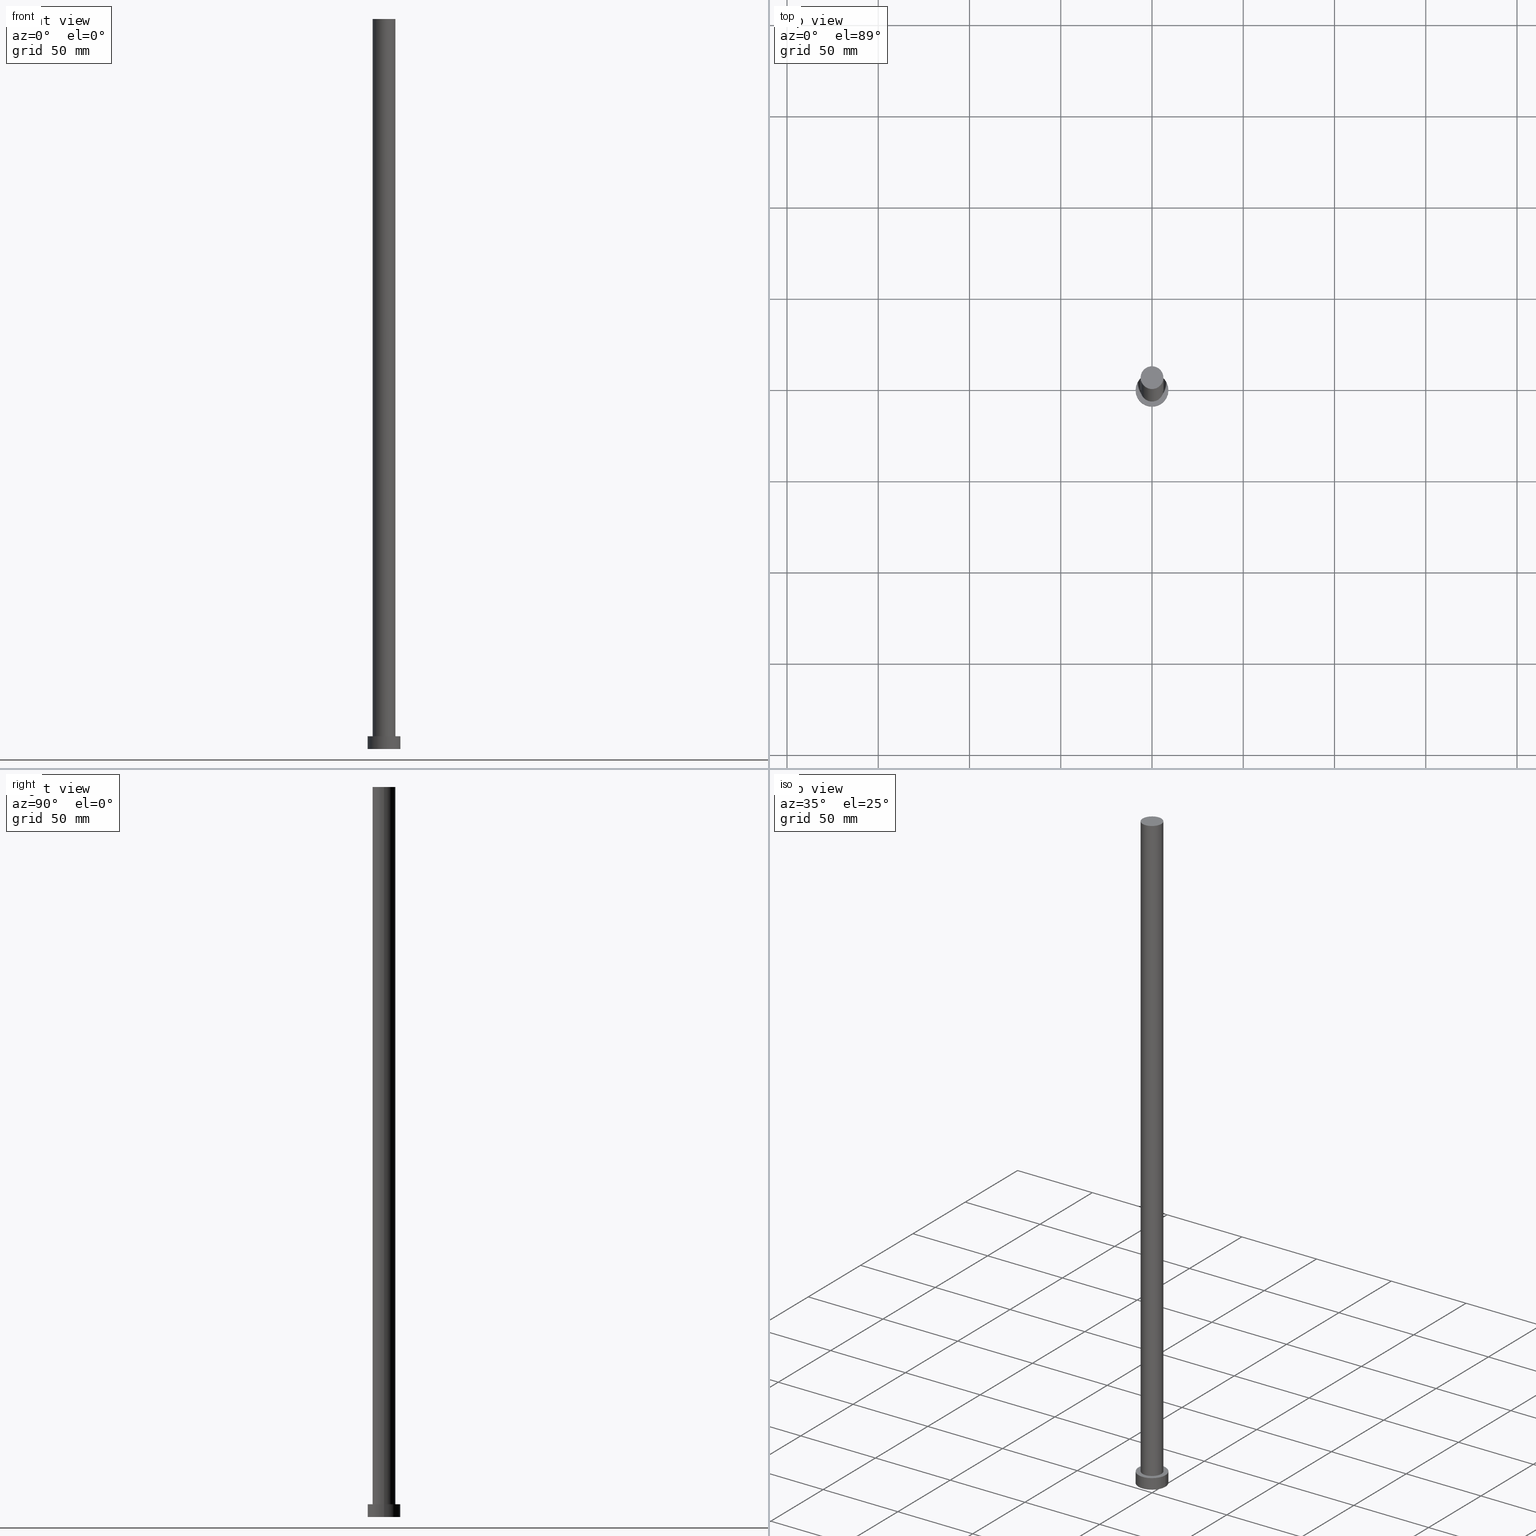
[diagram: canonical four-view strip — front | top / right | iso, engineering-drawing reading convention]
A machine part, canonical four-view strip (front | top / right | iso — engineering-drawing reading convention). The complete STEP part file that produces these views, byte-faithful:
ISO-10303-21;
HEADER;
FILE_DESCRIPTION (( 'STEP AP203' ),
    '1' );
FILE_NAME ('d6b2.STEP',
    '2023-02-12T10:54:33',
    ( '' ),
    ( '' ),
    'SwSTEP 2.0',
    'SolidWorks 2019',
    '' );
FILE_SCHEMA (( 'CONFIG_CONTROL_DESIGN' ));
ENDSEC;

DATA;
#1 = ORIENTED_EDGE ( 'NONE', *, *, #17, .T. ) ;
#2 = DIRECTION ( 'NONE',  ( 0.000000000000000000, 0.000000000000000000, 1.000000000000000000 ) ) ;
#3 = LOCAL_TIME ( 11, 54, 33.00000000000000000, #117 ) ;
#4 = ORIENTED_EDGE ( 'NONE', *, *, #50, .F. ) ;
#5 = CALENDAR_DATE ( 2023, 12, 2 ) ;
#6 = CYLINDRICAL_SURFACE ( 'NONE', #194, 6.250000000000000000 ) ;
#7 = APPROVAL_ROLE ( '' ) ;
#8 = FACE_OUTER_BOUND ( 'NONE', #220, .T. ) ;
#9 = CARTESIAN_POINT ( 'NONE',  ( 0.000000000000000000, 0.000000000000000000, 400.0000000000000000 ) ) ;
#10 = AXIS2_PLACEMENT_3D ( 'NONE', #173, #2, #116 ) ;
#11 = CARTESIAN_POINT ( 'NONE',  ( -9.000000000000000000, 0.000000000000000000, 7.000000000000000000 ) ) ;
#12 = CALENDAR_DATE ( 2023, 12, 2 ) ;
#13 = DIRECTION ( 'NONE',  ( 1.000000000000000000, 0.000000000000000000, 0.000000000000000000 ) ) ;
#14 = APPROVAL_STATUS ( 'not_yet_approved' ) ;
#15 = DATE_AND_TIME ( #204, #201 ) ;
#16 = CARTESIAN_POINT ( 'NONE',  ( 9.000000000000000000, 1.102182119232617714E-15, 7.000000000000000000 ) ) ;
#17 = EDGE_CURVE ( 'NONE', #172, #53, #49, .T. ) ;
#18 = VERTEX_POINT ( 'NONE', #221 ) ;
#19 = FACE_OUTER_BOUND ( 'NONE', #183, .T. ) ;
#20 = AXIS2_PLACEMENT_3D ( 'NONE', #46, #238, #108 ) ;
#21 = CC_DESIGN_DATE_AND_TIME_ASSIGNMENT ( #222, #241, ( #41 ) ) ;
#22 = AXIS2_PLACEMENT_3D ( 'NONE', #228, #56, #40 ) ;
#23 = CC_DESIGN_APPROVAL ( #255, ( #195 ) ) ;
#24 = ORIENTED_EDGE ( 'NONE', *, *, #36, .F. ) ;
#25 = CC_DESIGN_PERSON_AND_ORGANIZATION_ASSIGNMENT ( #129, #30, ( #100 ) ) ;
#26 = ORIENTED_EDGE ( 'NONE', *, *, #213, .F. ) ;
#27 = AXIS2_PLACEMENT_3D ( 'NONE', #251, #186, #120 ) ;
#28 = PERSON ( 'NEUR�EN�', 'NEUR�EN�', 'NEUR�EN�', ('NEUR�EN�'), ('NEUR�EN�'), ('NEUR�EN�') ) ;
#29 = ORIENTED_EDGE ( 'NONE', *, *, #50, .T. ) ;
#30 = PERSON_AND_ORGANIZATION_ROLE ( 'design_owner' ) ;
#31 = DIRECTION ( 'NONE',  ( -0.000000000000000000, -0.000000000000000000, -1.000000000000000000 ) ) ;
#32 = CARTESIAN_POINT ( 'NONE',  ( -6.250000000000000000, 0.000000000000000000, 400.0000000000000000 ) ) ;
#33 = CARTESIAN_POINT ( 'NONE',  ( 0.000000000000000000, 0.000000000000000000, 7.000000000000000000 ) ) ;
#34 = EDGE_CURVE ( 'NONE', #18, #235, #141, .T. ) ;
#35 = DIRECTION ( 'NONE',  ( 1.000000000000000000, 0.000000000000000000, 0.000000000000000000 ) ) ;
#36 = EDGE_CURVE ( 'NONE', #235, #18, #248, .T. ) ;
#37 = CARTESIAN_POINT ( 'NONE',  ( -9.000000000000000000, 0.000000000000000000, 0.000000000000000000 ) ) ;
#38 = ORIENTED_EDGE ( 'NONE', *, *, #217, .T. ) ;
#39 = AXIS2_PLACEMENT_3D ( 'NONE', #84, #112, #175 ) ;
#40 = DIRECTION ( 'NONE',  ( -1.000000000000000000, 0.000000000000000000, 0.000000000000000000 ) ) ;
#41 = SECURITY_CLASSIFICATION ( '', '', #98 ) ;
#42 = DIRECTION ( 'NONE',  ( 1.000000000000000000, 0.000000000000000000, 0.000000000000000000 ) ) ;
#43 = MANIFOLD_SOLID_BREP ( 'P�idat vysunut�m3', #190 ) ;
#44 = ADVANCED_FACE ( 'NONE', ( #230 ), #133, .T. ) ;
#45 = APPLICATION_CONTEXT ( 'configuration controlled 3d designs of mechanical parts and assemblies' ) ;
#46 = CARTESIAN_POINT ( 'NONE',  ( 0.000000000000000000, 0.000000000000000000, 400.0000000000000000 ) ) ;
#47 = ADVANCED_FACE ( 'NONE', ( #179, #223 ), #242, .T. ) ;
#48 = FACE_OUTER_BOUND ( 'NONE', #216, .T. ) ;
#49 = CIRCLE ( 'NONE', #158, 6.250000000000000000 ) ;
#50 = EDGE_CURVE ( 'NONE', #88, #235, #166, .T. ) ;
#51 = CARTESIAN_POINT ( 'NONE',  ( 6.250000000000000000, 7.654042494670957606E-16, 400.0000000000000000 ) ) ;
#52 = SHAPE_DEFINITION_REPRESENTATION ( #184, #218 ) ;
#53 = VERTEX_POINT ( 'NONE', #247 ) ;
#54 = LINE ( 'NONE', #16, #125 ) ;
#55 = PERSON_AND_ORGANIZATION ( #28, #62 ) ;
#56 = DIRECTION ( 'NONE',  ( -0.000000000000000000, -0.000000000000000000, -1.000000000000000000 ) ) ;
#57 = PERSON_AND_ORGANIZATION_ROLE ( 'creator' ) ;
#58 = ORIENTED_EDGE ( 'NONE', *, *, #206, .F. ) ;
#59 = EDGE_CURVE ( 'NONE', #207, #53, #130, .T. ) ;
#60 = CC_DESIGN_PERSON_AND_ORGANIZATION_ASSIGNMENT ( #203, #188, ( #191 ) ) ;
#61 = AXIS2_PLACEMENT_3D ( 'NONE', #153, #234, #227 ) ;
#62 = ORGANIZATION ( 'NEUR�EN�', 'NEUR�EN�', '' ) ;
#63 = EDGE_CURVE ( 'NONE', #215, #18, #54, .T. ) ;
#64 = APPROVAL_STATUS ( 'not_yet_approved' ) ;
#65 = APPLICATION_PROTOCOL_DEFINITION ( 'international standard', 'config_control_design', 1994, #45 ) ;
#66 = APPROVAL_PERSON_ORGANIZATION ( #163, #255, #229 ) ;
#67 = CC_DESIGN_APPROVAL ( #73, ( #41 ) ) ;
#68 = CALENDAR_DATE ( 2023, 12, 2 ) ;
#69 = APPLICATION_PROTOCOL_DEFINITION ( 'international standard', 'config_control_design', 1994, #231 ) ;
#70 = EDGE_LOOP ( 'NONE', ( #123, #111, #29, #212 ) ) ;
#71 = PERSON_AND_ORGANIZATION ( #28, #62 ) ;
#72 = CARTESIAN_POINT ( 'NONE',  ( 0.000000000000000000, 0.000000000000000000, 0.000000000000000000 ) ) ;
#73 = APPROVAL ( #64, 'NEUR�EN�' ) ;
#74 = VERTEX_POINT ( 'NONE', #51 ) ;
#75 = CARTESIAN_POINT ( 'NONE',  ( 0.000000000000000000, 0.000000000000000000, 0.000000000000000000 ) ) ;
#76 = DIRECTION ( 'NONE',  ( -1.000000000000000000, 0.000000000000000000, 0.000000000000000000 ) ) ;
#77 = APPROVAL_PERSON_ORGANIZATION ( #91, #73, #162 ) ;
#78 = PERSON_AND_ORGANIZATION_ROLE ( 'classification_officer' ) ;
#79 =( LENGTH_UNIT ( ) NAMED_UNIT ( * ) SI_UNIT ( .MILLI., .METRE. ) );
#80 = CARTESIAN_POINT ( 'NONE',  ( 6.250000000000000000, 7.654042494670957606E-16, 400.0000000000000000 ) ) ;
#81 = ORIENTED_EDGE ( 'NONE', *, *, #34, .T. ) ;
#82 = EDGE_CURVE ( 'NONE', #74, #172, #202, .T. ) ;
#83 = VECTOR ( 'NONE', #31, 1000.000000000000000 ) ;
#84 = CARTESIAN_POINT ( 'NONE',  ( 0.000000000000000000, 0.000000000000000000, 7.000000000000000000 ) ) ;
#85 = DESIGN_CONTEXT ( 'detailed design', #45, 'design' ) ;
#86 = EDGE_LOOP ( 'NONE', ( #101, #26, #233, #240 ) ) ;
#87 = ORIENTED_EDGE ( 'NONE', *, *, #206, .T. ) ;
#88 = VERTEX_POINT ( 'NONE', #181 ) ;
#89 = CYLINDRICAL_SURFACE ( 'NONE', #20, 6.250000000000000000 ) ;
#90 = DIRECTION ( 'NONE',  ( 1.000000000000000000, 0.000000000000000000, 0.000000000000000000 ) ) ;
#91 = PERSON_AND_ORGANIZATION ( #28, #62 ) ;
#92 = PLANE ( 'NONE',  #170 ) ;
#93 = MECHANICAL_CONTEXT ( 'NONE', #231, 'mechanical' ) ;
#94 = ADVANCED_FACE ( 'NONE', ( #8 ), #92, .T. ) ;
#95 = DATE_AND_TIME ( #12, #3 ) ;
#96 = CYLINDRICAL_SURFACE ( 'NONE', #22, 9.000000000000000000 ) ;
#97 = DIRECTION ( 'NONE',  ( -0.000000000000000000, -0.000000000000000000, -1.000000000000000000 ) ) ;
#98 = SECURITY_CLASSIFICATION_LEVEL ( 'unclassified' ) ;
#99 = DIRECTION ( 'NONE',  ( -0.000000000000000000, -0.000000000000000000, -1.000000000000000000 ) ) ;
#100 = PRODUCT ( 'd6b2', 'd6b2', '', ( #93 ) ) ;
#101 = ORIENTED_EDGE ( 'NONE', *, *, #82, .F. ) ;
#102 = CIRCLE ( 'NONE', #39, 6.250000000000000000 ) ;
#103 = ORIENTED_EDGE ( 'NONE', *, *, #146, .F. ) ;
#104 = PRODUCT_RELATED_PRODUCT_CATEGORY ( 'detail', '', ( #100 ) ) ;
#105 = ORIENTED_EDGE ( 'NONE', *, *, #63, .T. ) ;
#106 = DATE_TIME_ROLE ( 'creation_date' ) ;
#107 = ORIENTED_EDGE ( 'NONE', *, *, #59, .F. ) ;
#108 = DIRECTION ( 'NONE',  ( -1.000000000000000000, 0.000000000000000000, 0.000000000000000000 ) ) ;
#109 = ADVANCED_FACE ( 'NONE', ( #139 ), #237, .F. ) ;
#110 = AXIS2_PLACEMENT_3D ( 'NONE', #138, #214, #35 ) ;
#111 = ORIENTED_EDGE ( 'NONE', *, *, #174, .F. ) ;
#112 = DIRECTION ( 'NONE',  ( 0.000000000000000000, 0.000000000000000000, 1.000000000000000000 ) ) ;
#113 = EDGE_LOOP ( 'NONE', ( #103, #210 ) ) ;
#114 = COORDINATED_UNIVERSAL_TIME_OFFSET ( 1, 0, .AHEAD. ) ;
#115 = DIRECTION ( 'NONE',  ( -1.000000000000000000, 0.000000000000000000, 0.000000000000000000 ) ) ;
#116 = DIRECTION ( 'NONE',  ( 1.000000000000000000, 0.000000000000000000, 0.000000000000000000 ) ) ;
#117 = COORDINATED_UNIVERSAL_TIME_OFFSET ( 1, 0, .AHEAD. ) ;
#118 = CALENDAR_DATE ( 2023, 12, 2 ) ;
#119 = DIRECTION ( 'NONE',  ( 0.000000000000000000, 0.000000000000000000, 1.000000000000000000 ) ) ;
#120 = DIRECTION ( 'NONE',  ( 1.000000000000000000, 0.000000000000000000, -0.000000000000000000 ) ) ;
#121 = DIRECTION ( 'NONE',  ( 0.000000000000000000, 0.000000000000000000, 1.000000000000000000 ) ) ;
#122 = CARTESIAN_POINT ( 'NONE',  ( 0.000000000000000000, 0.000000000000000000, 400.0000000000000000 ) ) ;
#123 = ORIENTED_EDGE ( 'NONE', *, *, #63, .F. ) ;
#124 = AXIS2_PLACEMENT_3D ( 'NONE', #122, #121, #42 ) ;
#125 = VECTOR ( 'NONE', #99, 1000.000000000000000 ) ;
#126 = APPROVAL ( #14, 'NEUR�EN�' ) ;
#127 = DIRECTION ( 'NONE',  ( 1.000000000000000000, 0.000000000000000000, 0.000000000000000000 ) ) ;
#128 = ADVANCED_FACE ( 'NONE', ( #19 ), #96, .T. ) ;
#129 = PERSON_AND_ORGANIZATION ( #28, #62 ) ;
#130 = LINE ( 'NONE', #32, #131 ) ;
#131 = VECTOR ( 'NONE', #205, 1000.000000000000000 ) ;
#132 = CIRCLE ( 'NONE', #110, 6.250000000000000000 ) ;
#133 = CYLINDRICAL_SURFACE ( 'NONE', #150, 9.000000000000000000 ) ;
#134 = COORDINATED_UNIVERSAL_TIME_OFFSET ( 1, 0, .AHEAD. ) ;
#135 = DIRECTION ( 'NONE',  ( -0.000000000000000000, -0.000000000000000000, -1.000000000000000000 ) ) ;
#136 =( NAMED_UNIT ( * ) PLANE_ANGLE_UNIT ( ) SI_UNIT ( $, .RADIAN. ) );
#137 = EDGE_LOOP ( 'NONE', ( #24, #246 ) ) ;
#138 = CARTESIAN_POINT ( 'NONE',  ( 0.000000000000000000, 0.000000000000000000, 400.0000000000000000 ) ) ;
#139 = FACE_OUTER_BOUND ( 'NONE', #137, .T. ) ;
#140 = LOCAL_TIME ( 11, 54, 33.00000000000000000, #244 ) ;
#141 = CIRCLE ( 'NONE', #182, 9.000000000000000000 ) ;
#142 = CC_DESIGN_PERSON_AND_ORGANIZATION_ASSIGNMENT ( #55, #200, ( #191 ) ) ;
#143 = DIRECTION ( 'NONE',  ( 1.000000000000000000, 0.000000000000000000, 0.000000000000000000 ) ) ;
#144 = DIRECTION ( 'NONE',  ( 0.000000000000000000, 0.000000000000000000, 1.000000000000000000 ) ) ;
#145 = AXIS2_PLACEMENT_3D ( 'NONE', #75, #144, #127 ) ;
#146 = EDGE_CURVE ( 'NONE', #53, #172, #102, .T. ) ;
#147 = DATE_AND_TIME ( #68, #140 ) ;
#148 = COORDINATED_UNIVERSAL_TIME_OFFSET ( 1, 0, .AHEAD. ) ;
#149 = ORIENTED_EDGE ( 'NONE', *, *, #174, .T. ) ;
#150 = AXIS2_PLACEMENT_3D ( 'NONE', #187, #97, #115 ) ;
#151 = APPROVAL_STATUS ( 'not_yet_approved' ) ;
#152 = CC_DESIGN_APPROVAL ( #126, ( #191 ) ) ;
#153 = CARTESIAN_POINT ( 'NONE',  ( 0.000000000000000000, 0.000000000000000000, 0.000000000000000000 ) ) ;
#154 = DIRECTION ( 'NONE',  ( 1.000000000000000000, 0.000000000000000000, -0.000000000000000000 ) ) ;
#155 = CC_DESIGN_PERSON_AND_ORGANIZATION_ASSIGNMENT ( #71, #57, ( #195 ) ) ;
#156 = CIRCLE ( 'NONE', #124, 6.250000000000000000 ) ;
#157 = CC_DESIGN_SECURITY_CLASSIFICATION ( #41, ( #191 ) ) ;
#158 = AXIS2_PLACEMENT_3D ( 'NONE', #219, #160, #143 ) ;
#159 = ADVANCED_FACE ( 'NONE', ( #48 ), #89, .T. ) ;
#160 = DIRECTION ( 'NONE',  ( 0.000000000000000000, 0.000000000000000000, 1.000000000000000000 ) ) ;
#161 = VECTOR ( 'NONE', #135, 1000.000000000000000 ) ;
#162 = APPROVAL_ROLE ( '' ) ;
#163 = PERSON_AND_ORGANIZATION ( #28, #62 ) ;
#164 = CARTESIAN_POINT ( 'NONE',  ( 0.000000000000000000, 0.000000000000000000, 400.0000000000000000 ) ) ;
#165 = DIRECTION ( 'NONE',  ( -0.000000000000000000, -0.000000000000000000, -1.000000000000000000 ) ) ;
#166 = LINE ( 'NONE', #11, #161 ) ;
#167 = APPROVAL_DATE_TIME ( #95, #126 ) ;
#168 = DIRECTION ( 'NONE',  ( 0.000000000000000000, 0.000000000000000000, 1.000000000000000000 ) ) ;
#169 = AXIS2_PLACEMENT_3D ( 'NONE', #72, #226, #13 ) ;
#170 = AXIS2_PLACEMENT_3D ( 'NONE', #164, #119, #154 ) ;
#171 = PERSON_AND_ORGANIZATION ( #28, #62 ) ;
#172 = VERTEX_POINT ( 'NONE', #196 ) ;
#173 = CARTESIAN_POINT ( 'NONE',  ( 0.000000000000000000, 0.000000000000000000, 7.000000000000000000 ) ) ;
#174 = EDGE_CURVE ( 'NONE', #88, #215, #254, .T. ) ;
#175 = DIRECTION ( 'NONE',  ( 1.000000000000000000, 0.000000000000000000, 0.000000000000000000 ) ) ;
#176 = LOCAL_TIME ( 11, 54, 33.00000000000000000, #114 ) ;
#177 = ADVANCED_FACE ( 'NONE', ( #180 ), #6, .T. ) ;
#178 = DIRECTION ( 'NONE',  ( 0.000000000000000000, 0.000000000000000000, 1.000000000000000000 ) ) ;
#179 = FACE_BOUND ( 'NONE', #113, .T. ) ;
#180 = FACE_OUTER_BOUND ( 'NONE', #86, .T. ) ;
#181 = CARTESIAN_POINT ( 'NONE',  ( -9.000000000000000000, 0.000000000000000000, 7.000000000000000000 ) ) ;
#182 = AXIS2_PLACEMENT_3D ( 'NONE', #198, #178, #90 ) ;
#183 = EDGE_LOOP ( 'NONE', ( #58, #105, #81, #4 ) ) ;
#184 = PRODUCT_DEFINITION_SHAPE ( 'NONE', 'NONE',  #195 ) ;
#185 = DATE_AND_TIME ( #118, #208 ) ;
#186 = DIRECTION ( 'NONE',  ( 0.000000000000000000, 0.000000000000000000, 1.000000000000000000 ) ) ;
#187 = CARTESIAN_POINT ( 'NONE',  ( 0.000000000000000000, 0.000000000000000000, 7.000000000000000000 ) ) ;
#188 = PERSON_AND_ORGANIZATION_ROLE ( 'design_supplier' ) ;
#189 =( GEOMETRIC_REPRESENTATION_CONTEXT ( 3 ) GLOBAL_UNCERTAINTY_ASSIGNED_CONTEXT ( ( #192 ) ) GLOBAL_UNIT_ASSIGNED_CONTEXT ( ( #79, #136, #225 ) ) REPRESENTATION_CONTEXT ( 'NONE', 'WORKASPACE' ) );
#190 = CLOSED_SHELL ( 'NONE', ( #159, #128, #44, #47, #109, #177, #94 ) ) ;
#191 = PRODUCT_DEFINITION_FORMATION_WITH_SPECIFIED_SOURCE ( 'LIBOVOLN�', '', #100, .NOT_KNOWN. ) ;
#192 = UNCERTAINTY_MEASURE_WITH_UNIT (LENGTH_MEASURE( 1.000000000000000082E-05 ), #79, 'distance_accuracy_value', 'NONE');
#193 = ORIENTED_EDGE ( 'NONE', *, *, #213, .T. ) ;
#194 = AXIS2_PLACEMENT_3D ( 'NONE', #9, #165, #76 ) ;
#195 = PRODUCT_DEFINITION ( 'NEZN�M�', '', #191, #85 ) ;
#196 = CARTESIAN_POINT ( 'NONE',  ( 6.250000000000000000, 7.654042494670957606E-16, 7.000000000000000000 ) ) ;
#197 = EDGE_LOOP ( 'NONE', ( #149, #87 ) ) ;
#198 = CARTESIAN_POINT ( 'NONE',  ( 0.000000000000000000, 0.000000000000000000, 0.000000000000000000 ) ) ;
#199 = AXIS2_PLACEMENT_3D ( 'NONE', #33, #168, #211 ) ;
#200 = PERSON_AND_ORGANIZATION_ROLE ( 'creator' ) ;
#201 = LOCAL_TIME ( 11, 54, 33.00000000000000000, #134 ) ;
#202 = LINE ( 'NONE', #80, #83 ) ;
#203 = PERSON_AND_ORGANIZATION ( #28, #62 ) ;
#204 = CALENDAR_DATE ( 2023, 12, 2 ) ;
#205 = DIRECTION ( 'NONE',  ( -0.000000000000000000, -0.000000000000000000, -1.000000000000000000 ) ) ;
#206 = EDGE_CURVE ( 'NONE', #215, #88, #250, .T. ) ;
#207 = VERTEX_POINT ( 'NONE', #253 ) ;
#208 = LOCAL_TIME ( 11, 54, 33.00000000000000000, #148 ) ;
#209 = CARTESIAN_POINT ( 'NONE',  ( 9.000000000000000000, 1.102182119232617714E-15, 7.000000000000000000 ) ) ;
#210 = ORIENTED_EDGE ( 'NONE', *, *, #17, .F. ) ;
#211 = DIRECTION ( 'NONE',  ( 1.000000000000000000, 0.000000000000000000, 0.000000000000000000 ) ) ;
#212 = ORIENTED_EDGE ( 'NONE', *, *, #36, .T. ) ;
#213 = EDGE_CURVE ( 'NONE', #207, #74, #132, .T. ) ;
#214 = DIRECTION ( 'NONE',  ( 0.000000000000000000, 0.000000000000000000, 1.000000000000000000 ) ) ;
#215 = VERTEX_POINT ( 'NONE', #209 ) ;
#216 = EDGE_LOOP ( 'NONE', ( #236, #252, #1, #107 ) ) ;
#217 = EDGE_CURVE ( 'NONE', #74, #207, #156, .T. ) ;
#218 = ADVANCED_BREP_SHAPE_REPRESENTATION ( 'd6b2', ( #43, #145 ), #189 ) ;
#219 = CARTESIAN_POINT ( 'NONE',  ( 0.000000000000000000, 0.000000000000000000, 7.000000000000000000 ) ) ;
#220 = EDGE_LOOP ( 'NONE', ( #193, #38 ) ) ;
#221 = CARTESIAN_POINT ( 'NONE',  ( 9.000000000000000000, 1.102182119232617714E-15, 0.000000000000000000 ) ) ;
#222 = DATE_AND_TIME ( #5, #176 ) ;
#223 = FACE_OUTER_BOUND ( 'NONE', #197, .T. ) ;
#224 = APPROVAL_DATE_TIME ( #147, #73 ) ;
#225 =( NAMED_UNIT ( * ) SI_UNIT ( $, .STERADIAN. ) SOLID_ANGLE_UNIT ( ) );
#226 = DIRECTION ( 'NONE',  ( 0.000000000000000000, 0.000000000000000000, 1.000000000000000000 ) ) ;
#227 = DIRECTION ( 'NONE',  ( 1.000000000000000000, 0.000000000000000000, -0.000000000000000000 ) ) ;
#228 = CARTESIAN_POINT ( 'NONE',  ( 0.000000000000000000, 0.000000000000000000, 7.000000000000000000 ) ) ;
#229 = APPROVAL_ROLE ( '' ) ;
#230 = FACE_OUTER_BOUND ( 'NONE', #70, .T. ) ;
#231 = APPLICATION_CONTEXT ( 'configuration controlled 3d designs of mechanical parts and assemblies' ) ;
#232 = CC_DESIGN_PERSON_AND_ORGANIZATION_ASSIGNMENT ( #249, #78, ( #41 ) ) ;
#233 = ORIENTED_EDGE ( 'NONE', *, *, #59, .T. ) ;
#234 = DIRECTION ( 'NONE',  ( 0.000000000000000000, 0.000000000000000000, 1.000000000000000000 ) ) ;
#235 = VERTEX_POINT ( 'NONE', #37 ) ;
#236 = ORIENTED_EDGE ( 'NONE', *, *, #217, .F. ) ;
#237 = PLANE ( 'NONE',  #61 ) ;
#238 = DIRECTION ( 'NONE',  ( -0.000000000000000000, -0.000000000000000000, -1.000000000000000000 ) ) ;
#239 = CC_DESIGN_DATE_AND_TIME_ASSIGNMENT ( #15, #106, ( #195 ) ) ;
#240 = ORIENTED_EDGE ( 'NONE', *, *, #146, .T. ) ;
#241 = DATE_TIME_ROLE ( 'classification_date' ) ;
#242 = PLANE ( 'NONE',  #27 ) ;
#243 = APPROVAL_PERSON_ORGANIZATION ( #171, #126, #7 ) ;
#244 = COORDINATED_UNIVERSAL_TIME_OFFSET ( 1, 0, .AHEAD. ) ;
#245 = APPROVAL_DATE_TIME ( #185, #255 ) ;
#246 = ORIENTED_EDGE ( 'NONE', *, *, #34, .F. ) ;
#247 = CARTESIAN_POINT ( 'NONE',  ( -6.250000000000000000, 0.000000000000000000, 7.000000000000000000 ) ) ;
#248 = CIRCLE ( 'NONE', #169, 9.000000000000000000 ) ;
#249 = PERSON_AND_ORGANIZATION ( #28, #62 ) ;
#250 = CIRCLE ( 'NONE', #199, 9.000000000000000000 ) ;
#251 = CARTESIAN_POINT ( 'NONE',  ( 0.000000000000000000, 0.000000000000000000, 7.000000000000000000 ) ) ;
#252 = ORIENTED_EDGE ( 'NONE', *, *, #82, .T. ) ;
#253 = CARTESIAN_POINT ( 'NONE',  ( -6.250000000000000000, 0.000000000000000000, 400.0000000000000000 ) ) ;
#254 = CIRCLE ( 'NONE', #10, 9.000000000000000000 ) ;
#255 = APPROVAL ( #151, 'NEUR�EN�' ) ;
ENDSEC;
END-ISO-10303-21;
